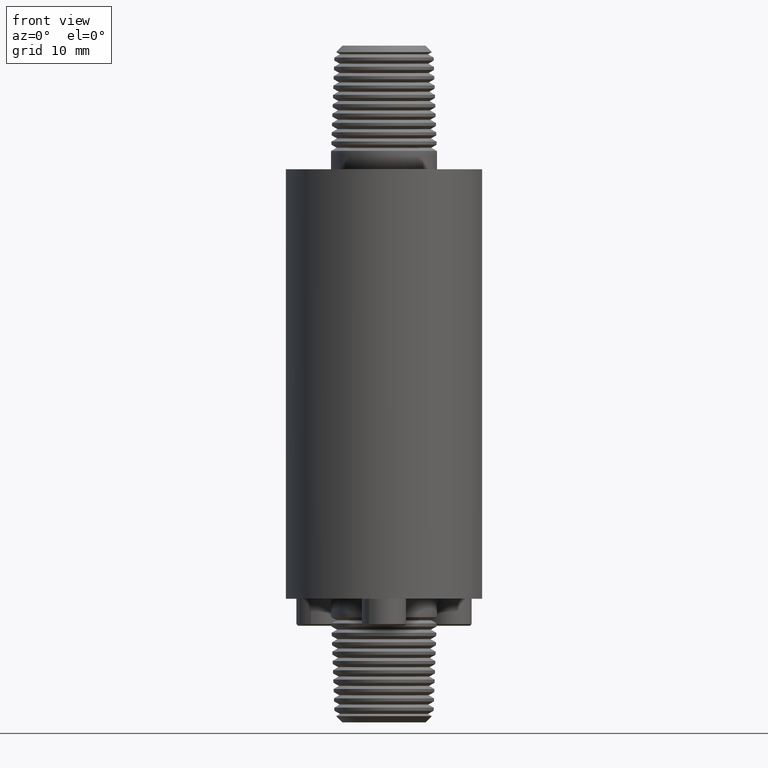
[diagram: clean part render]
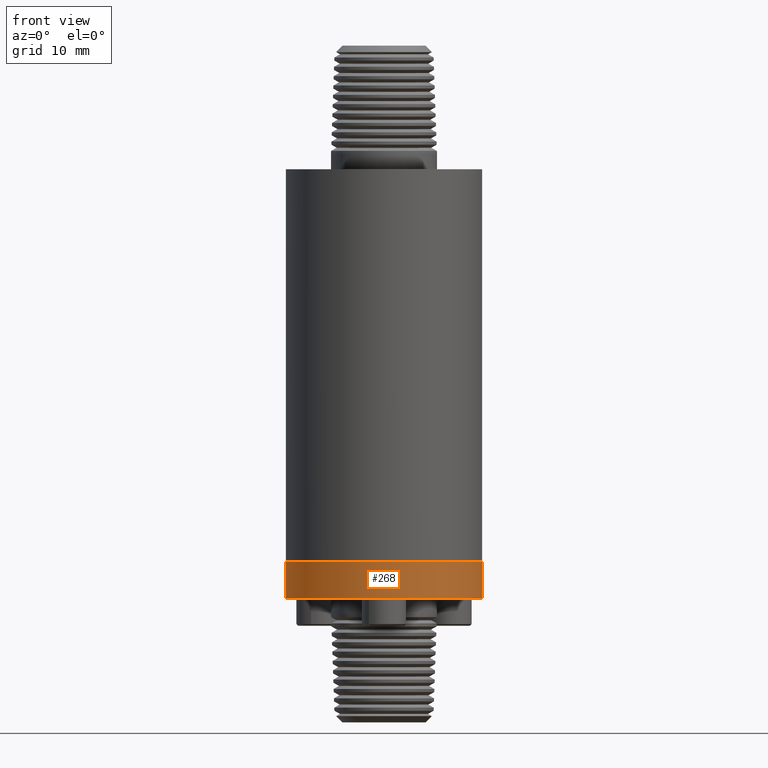
[diagram: same view with one face highlighted and labeled with its STEP entity id]
A machine part, front view. The second image highlights one B-rep face of the part: STEP entity #268.
In plain terms, the highlighted cylindrical surface (partial cylindrical patch) has radius 12.7 mm, axis along (0, 0, 1).
Its self-contained STEP definition (entity closure, byte-faithful):
#28 = ORIENTED_EDGE ( 'NONE', *, *, #3265, .F. ) ;
#31 = ORIENTED_EDGE ( 'NONE', *, *, #1102, .T. ) ;
#66 = ORIENTED_EDGE ( 'NONE', *, *, #1078, .T. ) ;
#70 = ORIENTED_EDGE ( 'NONE', *, *, #3342, .F. ) ;
#268 = ADVANCED_FACE ( 'NONE', ( #3209 ), #4448, .T. ) ;
#468 = DIRECTION ( 'NONE',  ( -0.0000000000000000000, -0.0000000000000000000, 1.000000000000000000 ) ) ;
#487 = CARTESIAN_POINT ( 'NONE',  ( 0.0000000000000000000, 0.0000000000000000000, -0.7579999999999999000 ) ) ;
#496 = DIRECTION ( 'NONE',  ( 1.000000000000000000, 0.0000000000000000000, 0.0000000000000000000 ) ) ;
#917 = CARTESIAN_POINT ( 'NONE',  ( 0.4999999999999997800, 0.0000000000000000000, -0.7579999999999999000 ) ) ;
#918 = CARTESIAN_POINT ( 'NONE',  ( -0.4999999999999997800, 6.123233995736763600E-017, -0.7579999999999999000 ) ) ;
#949 = CARTESIAN_POINT ( 'NONE',  ( -0.4999999999999997800, 6.123233995736763600E-017, -0.9449999999999998400 ) ) ;
#950 = CARTESIAN_POINT ( 'NONE',  ( 0.4999999999999997800, 0.0000000000000000000, -0.9449999999999998400 ) ) ;
#1078 = EDGE_CURVE ( 'NONE', #3598, #3599, #4486, .T. ) ;
#1102 = EDGE_CURVE ( 'NONE', #3599, #3596, #4526, .T. ) ;
#1251 = EDGE_LOOP ( 'NONE', ( #28, #66, #31, #70 ) ) ;
#1485 = AXIS2_PLACEMENT_3D ( 'NONE', #5899, #5715, #5703 ) ;
#1572 = AXIS2_PLACEMENT_3D ( 'NONE', #2864, #2677, #2943 ) ;
#1768 = AXIS2_PLACEMENT_3D ( 'NONE', #487, #468, #496 ) ;
#2056 = CARTESIAN_POINT ( 'NONE',  ( 0.4999999999999997800, 0.0000000000000000000, 0.1511003165361955400 ) ) ;
#2057 = DIRECTION ( 'NONE',  ( -0.0000000000000000000, -0.0000000000000000000, 1.000000000000000000 ) ) ;
#2120 = DIRECTION ( 'NONE',  ( -0.0000000000000000000, -0.0000000000000000000, 1.000000000000000000 ) ) ;
#2121 = CARTESIAN_POINT ( 'NONE',  ( -0.4999999999999997800, 6.123233995736763600E-017, 0.1511003165361955400 ) ) ;
#2677 = DIRECTION ( 'NONE',  ( -0.0000000000000000000, -0.0000000000000000000, 1.000000000000000000 ) ) ;
#2864 = CARTESIAN_POINT ( 'NONE',  ( 0.0000000000000000000, 0.0000000000000000000, -0.9449999999999998400 ) ) ;
#2943 = DIRECTION ( 'NONE',  ( 1.000000000000000000, 0.0000000000000000000, 0.0000000000000000000 ) ) ;
#3209 = FACE_OUTER_BOUND ( 'NONE', #1251, .T. ) ;
#3265 = EDGE_CURVE ( 'NONE', #3598, #3597, #4935, .T. ) ;
#3342 = EDGE_CURVE ( 'NONE', #3597, #3596, #5040, .T. ) ;
#3596 = VERTEX_POINT ( 'NONE', #917 ) ;
#3597 = VERTEX_POINT ( 'NONE', #918 ) ;
#3598 = VERTEX_POINT ( 'NONE', #949 ) ;
#3599 = VERTEX_POINT ( 'NONE', #950 ) ;
#4448 = CYLINDRICAL_SURFACE ( 'NONE', #1485, 0.4999999999999997800 ) ;
#4465 = VECTOR ( 'NONE', #2057, 39.37007874015748100 ) ;
#4486 = CIRCLE ( 'NONE', #1572, 0.4999999999999997800 ) ;
#4526 = LINE ( 'NONE', #2056, #4465 ) ;
#4935 = LINE ( 'NONE', #2121, #4936 ) ;
#4936 = VECTOR ( 'NONE', #2120, 39.37007874015748100 ) ;
#5040 = CIRCLE ( 'NONE', #1768, 0.4999999999999997800 ) ;
#5703 = DIRECTION ( 'NONE',  ( 1.000000000000000000, 0.0000000000000000000, 0.0000000000000000000 ) ) ;
#5715 = DIRECTION ( 'NONE',  ( -0.0000000000000000000, -0.0000000000000000000, 1.000000000000000000 ) ) ;
#5899 = CARTESIAN_POINT ( 'NONE',  ( 0.0000000000000000000, 0.0000000000000000000, 0.1511003165361955400 ) ) ;